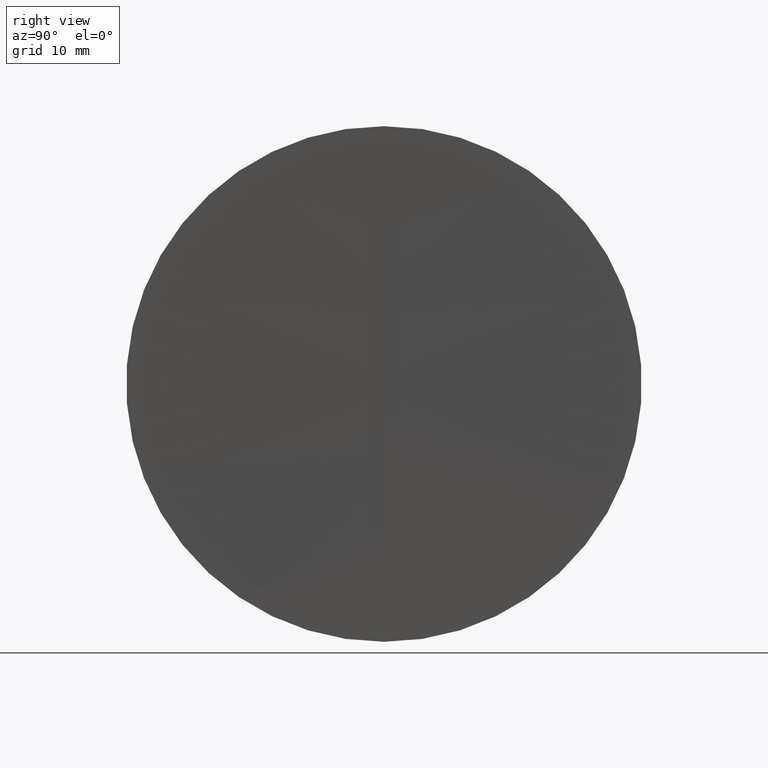
[diagram: clean part render]
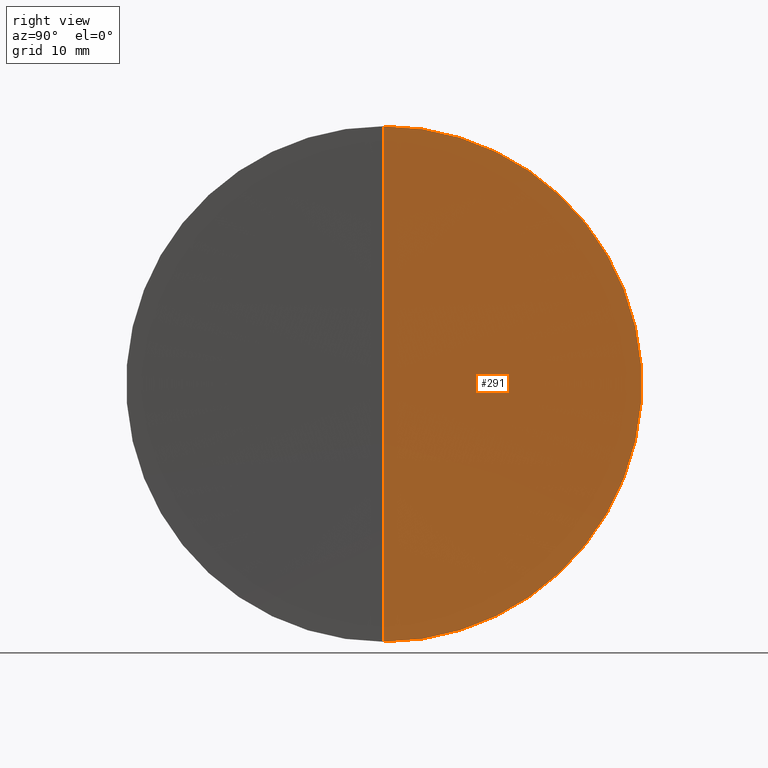
[diagram: same view with one face highlighted and labeled with its STEP entity id]
A machine part, right view. The second image highlights one B-rep face of the part: STEP entity #291.
In plain terms, the highlighted spherical surface has radius 2910 mm.
Its self-contained STEP definition (entity closure, byte-faithful):
#10 = CARTESIAN_POINT ( 'NONE',  ( 2882.249075871704500, 0.0000000000000000000, 0.0000000000000000000 ) ) ;
#14 = CIRCLE ( 'NONE', #275, 25.39999999999983900 ) ;
#34 = AXIS2_PLACEMENT_3D ( 'NONE', #129, #103, #331 ) ;
#35 = DIRECTION ( 'NONE',  ( 0.0000000000000000000, 1.000000000000000000, -0.0000000000000000000 ) ) ;
#38 = ORIENTED_EDGE ( 'NONE', *, *, #193, .F. ) ;
#57 = VERTEX_POINT ( 'NONE', #280 ) ;
#69 = EDGE_CURVE ( 'NONE', #250, #57, #14, .T. ) ;
#81 = EDGE_CURVE ( 'NONE', #250, #93, #184, .T. ) ;
#93 = VERTEX_POINT ( 'NONE', #337 ) ;
#103 = DIRECTION ( 'NONE',  ( 0.0000000000000000000, -1.000000000000000000, -1.224646799147353200E-016 ) ) ;
#105 = SPHERICAL_SURFACE ( 'NONE', #345, 2910.000000000000000 ) ;
#114 = CARTESIAN_POINT ( 'NONE',  ( 2882.249075871704500, 0.0000000000000000000, 0.0000000000000000000 ) ) ;
#116 = DIRECTION ( 'NONE',  ( 0.0000000000000000000, 0.0000000000000000000, 1.000000000000000000 ) ) ;
#129 = CARTESIAN_POINT ( 'NONE',  ( 2882.249075871704500, 0.0000000000000000000, 0.0000000000000000000 ) ) ;
#136 = CARTESIAN_POINT ( 'NONE',  ( -27.64006978316091400, 0.0000000000000000000, 0.0000000000000000000 ) ) ;
#176 = CIRCLE ( 'NONE', #283, 2910.000000000000000 ) ;
#181 = ORIENTED_EDGE ( 'NONE', *, *, #69, .F. ) ;
#184 = CIRCLE ( 'NONE', #34, 2910.000000000000000 ) ;
#185 = DIRECTION ( 'NONE',  ( 0.0000000000000000000, 0.0000000000000000000, 1.000000000000000000 ) ) ;
#193 = EDGE_CURVE ( 'NONE', #57, #93, #176, .T. ) ;
#202 = DIRECTION ( 'NONE',  ( -1.000000000000000000, -0.0000000000000000000, -0.0000000000000000000 ) ) ;
#212 = CARTESIAN_POINT ( 'NONE',  ( -27.64006978316091400, 0.0000000000000000000, 25.39999999999983900 ) ) ;
#230 = ORIENTED_EDGE ( 'NONE', *, *, #81, .T. ) ;
#250 = VERTEX_POINT ( 'NONE', #212 ) ;
#258 = FACE_OUTER_BOUND ( 'NONE', #296, .T. ) ;
#275 = AXIS2_PLACEMENT_3D ( 'NONE', #136, #202, #185 ) ;
#278 = DIRECTION ( 'NONE',  ( 0.0000000000000000000, 0.0000000000000000000, -1.000000000000000000 ) ) ;
#280 = CARTESIAN_POINT ( 'NONE',  ( -27.64006978316091400, 3.110602869834261500E-015, -25.39999999999983900 ) ) ;
#281 = DIRECTION ( 'NONE',  ( -0.0000000000000000000, -1.000000000000000000, -0.0000000000000000000 ) ) ;
#283 = AXIS2_PLACEMENT_3D ( 'NONE', #10, #35, #116 ) ;
#291 = ADVANCED_FACE ( 'NONE', ( #258 ), #105, .F. ) ;
#296 = EDGE_LOOP ( 'NONE', ( #181, #230, #38 ) ) ;
#331 = DIRECTION ( 'NONE',  ( 0.0000000000000000000, 1.224646799147353200E-016, -1.000000000000000000 ) ) ;
#337 = CARTESIAN_POINT ( 'NONE',  ( -27.75092412829582900, 0.0000000000000000000, -1.781861092759398900E-013 ) ) ;
#345 = AXIS2_PLACEMENT_3D ( 'NONE', #114, #281, #278 ) ;